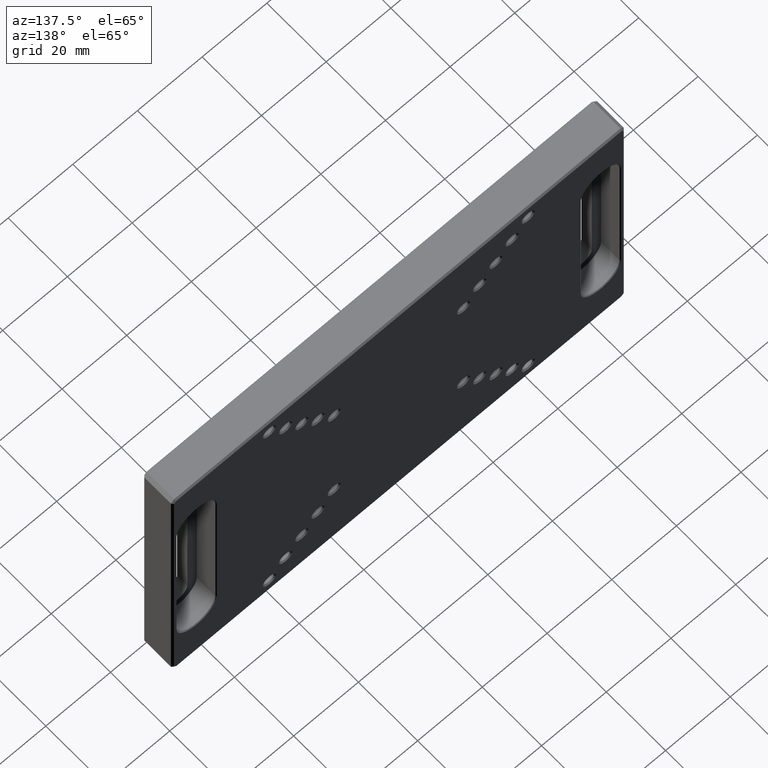
[diagram: clean part render]
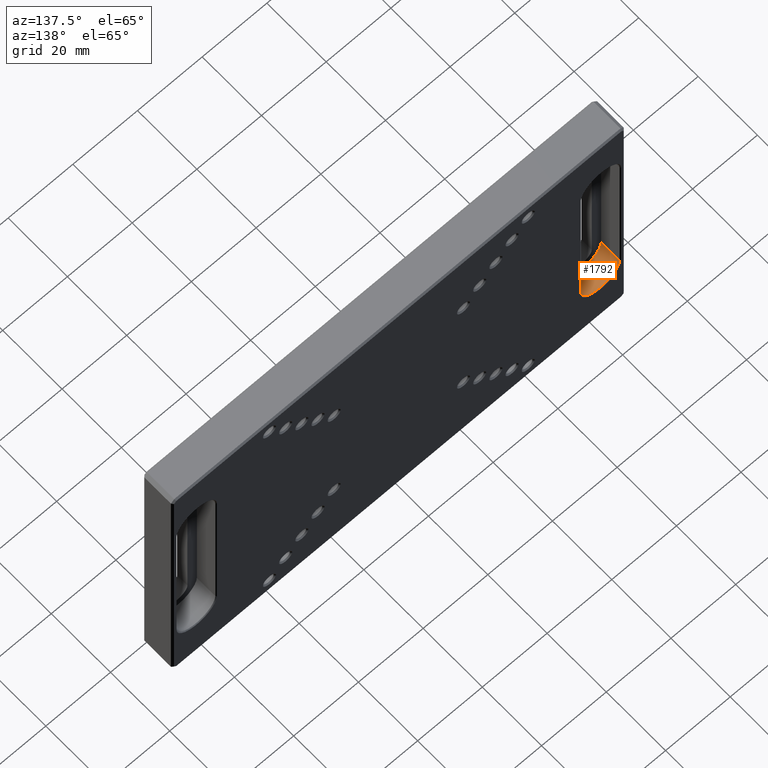
[diagram: same view with one face highlighted and labeled with its STEP entity id]
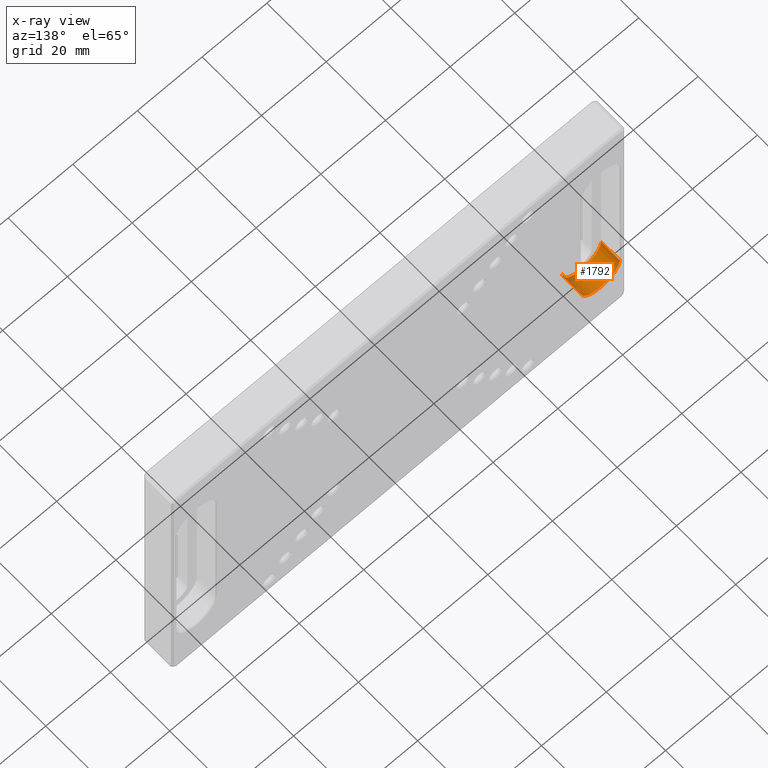
[diagram: x-ray of the same camera — body ghosted, the highlighted face saturated]
A machine part, auxiliary view. The second image highlights one B-rep face of the part: STEP entity #1792.
The next image is the same camera in x-ray: the body ghosted, the highlighted face saturated — about 7% of this face is hidden behind the body in this view.
In plain terms, the highlighted cylindrical surface (edge-blend (fillet) strip) has radius 6 mm, axis along (-0, 1, -0).
Its self-contained STEP definition (entity closure, byte-faithful):
#117 = ORIENTED_EDGE ( 'NONE', *, *, #1178, .F. ) ;
#120 = VERTEX_POINT ( 'NONE', #972 ) ;
#265 = DIRECTION ( 'NONE',  ( 0.000000000000000000, 0.000000000000000000, 1.000000000000000000 ) ) ;
#400 = DIRECTION ( 'NONE',  ( -0.000000000000000000, 1.000000000000000000, -0.000000000000000000 ) ) ;
#508 = EDGE_CURVE ( 'NONE', #1888, #1584, #1197, .T. ) ;
#535 = CYLINDRICAL_SURFACE ( 'NONE', #1366, 6.000000000000001776 ) ;
#654 = DIRECTION ( 'NONE',  ( 0.000000000000000000, 0.000000000000000000, 1.000000000000000000 ) ) ;
#757 = CARTESIAN_POINT ( 'NONE',  ( -62.50000000000001421, 3.500000000000000444, -25.00000000000000000 ) ) ;
#891 = CIRCLE ( 'NONE', #1973, 6.000000000000001776 ) ;
#937 = DIRECTION ( 'NONE',  ( 0.000000000000000000, 0.000000000000000000, 1.000000000000000000 ) ) ;
#956 = CARTESIAN_POINT ( 'NONE',  ( -56.50000000000001421, 3.500000000000000444, -25.00000000000000000 ) ) ;
#972 = CARTESIAN_POINT ( 'NONE',  ( -68.50000000000001421, 9.750000000000012434, -25.00000000000000000 ) ) ;
#1016 = LINE ( 'NONE', #2014, #2240 ) ;
#1073 = EDGE_CURVE ( 'NONE', #1584, #120, #2446, .T. ) ;
#1146 = FACE_OUTER_BOUND ( 'NONE', #1735, .T. ) ;
#1178 = EDGE_CURVE ( 'NONE', #1888, #1608, #891, .T. ) ;
#1197 = LINE ( 'NONE', #956, #1271 ) ;
#1234 = DIRECTION ( 'NONE',  ( -0.000000000000000000, 1.000000000000000000, -0.000000000000000000 ) ) ;
#1271 = VECTOR ( 'NONE', #400, 1000.000000000000000 ) ;
#1319 = AXIS2_PLACEMENT_3D ( 'NONE', #2090, #1671, #654 ) ;
#1366 = AXIS2_PLACEMENT_3D ( 'NONE', #757, #1550, #937 ) ;
#1498 = CARTESIAN_POINT ( 'NONE',  ( -56.50000000000001421, 9.750000000000012434, -25.00000000000000000 ) ) ;
#1550 = DIRECTION ( 'NONE',  ( -0.000000000000000000, 1.000000000000000000, -0.000000000000000000 ) ) ;
#1584 = VERTEX_POINT ( 'NONE', #1498 ) ;
#1608 = VERTEX_POINT ( 'NONE', #2288 ) ;
#1643 = CARTESIAN_POINT ( 'NONE',  ( -62.50000000000001421, 3.500000000000000444, -25.00000000000000000 ) ) ;
#1671 = DIRECTION ( 'NONE',  ( 0.000000000000000000, 1.000000000000000000, 0.000000000000000000 ) ) ;
#1735 = EDGE_LOOP ( 'NONE', ( #1743, #1976, #1875, #117 ) ) ;
#1743 = ORIENTED_EDGE ( 'NONE', *, *, #508, .T. ) ;
#1771 = CARTESIAN_POINT ( 'NONE',  ( -56.50000000000001421, 3.500000000000000444, -25.00000000000000000 ) ) ;
#1792 = ADVANCED_FACE ( 'NONE', ( #1146 ), #535, .F. ) ;
#1875 = ORIENTED_EDGE ( 'NONE', *, *, #2280, .F. ) ;
#1888 = VERTEX_POINT ( 'NONE', #1771 ) ;
#1973 = AXIS2_PLACEMENT_3D ( 'NONE', #1643, #2249, #265 ) ;
#1976 = ORIENTED_EDGE ( 'NONE', *, *, #1073, .T. ) ;
#2014 = CARTESIAN_POINT ( 'NONE',  ( -68.50000000000001421, 3.500000000000000444, -25.00000000000000000 ) ) ;
#2090 = CARTESIAN_POINT ( 'NONE',  ( -62.50000000000001421, 9.750000000000014211, -25.00000000000000000 ) ) ;
#2240 = VECTOR ( 'NONE', #1234, 1000.000000000000000 ) ;
#2249 = DIRECTION ( 'NONE',  ( 0.000000000000000000, 1.000000000000000000, 0.000000000000000000 ) ) ;
#2280 = EDGE_CURVE ( 'NONE', #1608, #120, #1016, .T. ) ;
#2288 = CARTESIAN_POINT ( 'NONE',  ( -68.50000000000001421, 3.500000000000000444, -25.00000000000000000 ) ) ;
#2446 = CIRCLE ( 'NONE', #1319, 6.000000000000001776 ) ;